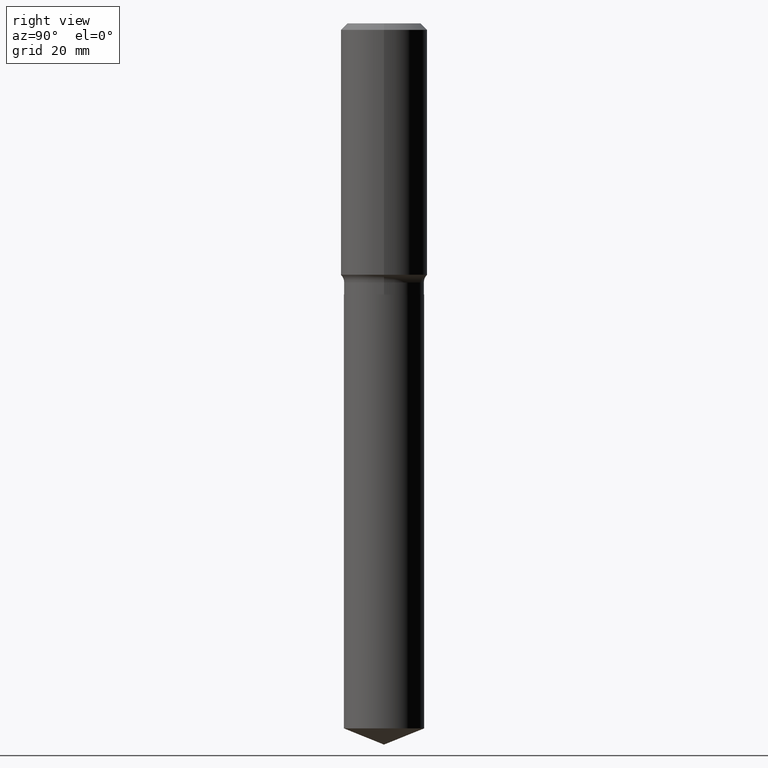
[diagram: clean part render]
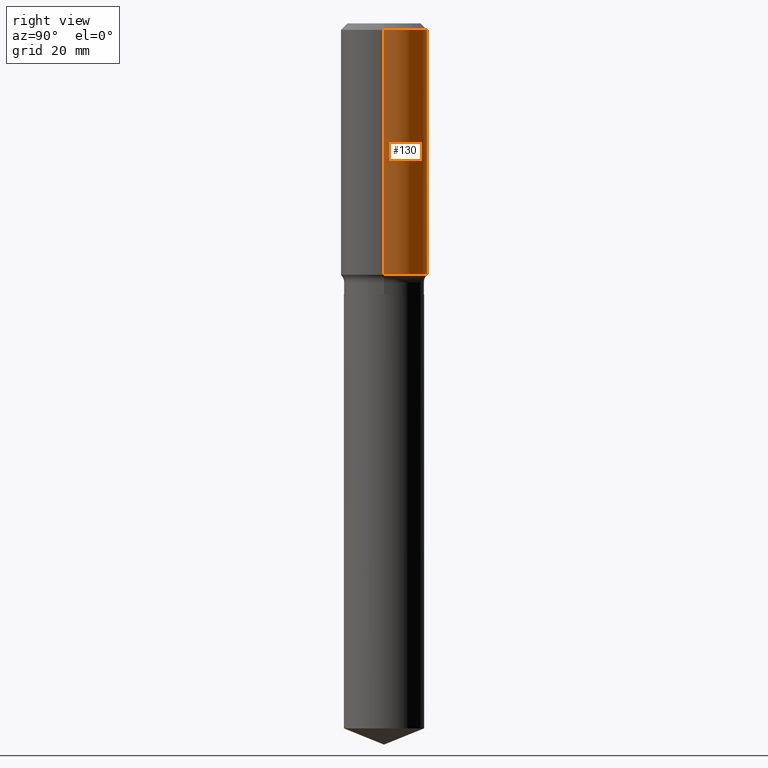
[diagram: same view with one face highlighted and labeled with its STEP entity id]
A machine part, right view. The second image highlights one B-rep face of the part: STEP entity #130.
In plain terms, the highlighted cylindrical surface (partial cylindrical patch) has radius 7.9997 mm, axis along (-0, 0, 1).
Its self-contained STEP definition (entity closure, byte-faithful):
#18 = AXIS2_PLACEMENT_3D ( 'NONE', #274, #438, #236 ) ;
#20 = DIRECTION ( 'NONE',  ( -2.445468806185136877E-29, 3.491481338843145188E-15, 1.000000000000000000 ) ) ;
#26 = CARTESIAN_POINT ( 'NONE',  ( 0.000000000000000000, 0.000000000000000000, 0.000000000000000000 ) ) ;
#33 = CARTESIAN_POINT ( 'NONE',  ( 4.462250649209089674E-29, -6.370911308109631096E-15, -1.824701520593131843 ) ) ;
#51 = EDGE_CURVE ( 'NONE', #275, #142, #349, .T. ) ;
#57 = VERTEX_POINT ( 'NONE', #341 ) ;
#65 = CARTESIAN_POINT ( 'NONE',  ( 0.3149500000000001743, -2.199284095337290660E-15, 1.535751875536930690E-29 ) ) ;
#112 = VECTOR ( 'NONE', #333, 39.37007874015748143 ) ;
#121 = EDGE_CURVE ( 'NONE', #269, #57, #215, .T. ) ;
#130 = ADVANCED_FACE ( 'NONE', ( #291 ), #381, .T. ) ;
#142 = VERTEX_POINT ( 'NONE', #177 ) ;
#144 = ORIENTED_EDGE ( 'NONE', *, *, #51, .F. ) ;
#149 = CARTESIAN_POINT ( 'NONE',  ( -0.3149500000000001743, 2.237854346276436774E-15, -1.549218606675783237E-29 ) ) ;
#153 = ORIENTED_EDGE ( 'NONE', *, *, #385, .T. ) ;
#177 = CARTESIAN_POINT ( 'NONE',  ( 0.3149500000000000077, -2.364230402487588149E-15, -0.04724250000000029120 ) ) ;
#188 = DIRECTION ( 'NONE',  ( 1.000000000000000000, -6.982962677686268288E-15, 0.000000000000000000 ) ) ;
#204 = VECTOR ( 'NONE', #20, 39.37007874015748143 ) ;
#215 = LINE ( 'NONE', #149, #112 ) ;
#236 = DIRECTION ( 'NONE',  ( 1.000000000000000000, -6.982962677686266711E-15, 0.000000000000000000 ) ) ;
#249 = ORIENTED_EDGE ( 'NONE', *, *, #267, .F. ) ;
#262 = DIRECTION ( 'NONE',  ( -2.445468806185136597E-29, 3.491481338843145583E-15, 1.000000000000000000 ) ) ;
#264 = CIRCLE ( 'NONE', #467, 0.3149500000000002298 ) ;
#267 = EDGE_CURVE ( 'NONE', #142, #57, #463, .T. ) ;
#269 = VERTEX_POINT ( 'NONE', #401 ) ;
#274 = CARTESIAN_POINT ( 'NONE',  ( 1.155300600762020273E-30, -1.649463071502983032E-16, -0.04724250000000029120 ) ) ;
#275 = VERTEX_POINT ( 'NONE', #326 ) ;
#291 = FACE_OUTER_BOUND ( 'NONE', #413, .T. ) ;
#293 = DIRECTION ( 'NONE',  ( 1.000000000000000000, -6.982962677686265922E-15, 4.876176775795935232E-29 ) ) ;
#315 = DIRECTION ( 'NONE',  ( -2.445468806185136597E-29, 3.491481338843145583E-15, 1.000000000000000000 ) ) ;
#326 = CARTESIAN_POINT ( 'NONE',  ( 0.3149500000000002853, -8.570195403446922545E-15, -1.824701520593131843 ) ) ;
#333 = DIRECTION ( 'NONE',  ( -2.445468806185136877E-29, 3.491481338843145188E-15, 1.000000000000000000 ) ) ;
#341 = CARTESIAN_POINT ( 'NONE',  ( -0.3149500000000000077, -1.030074461353527914E-15, -0.04724250000000029120 ) ) ;
#349 = LINE ( 'NONE', #65, #204 ) ;
#369 = ORIENTED_EDGE ( 'NONE', *, *, #121, .T. ) ;
#381 = CYLINDRICAL_SURFACE ( 'NONE', #457, 0.3149500000000001743 ) ;
#385 = EDGE_CURVE ( 'NONE', #275, #269, #264, .T. ) ;
#401 = CARTESIAN_POINT ( 'NONE',  ( -0.3149500000000002853, -4.133056961833193534E-15, -1.824701520593131843 ) ) ;
#413 = EDGE_LOOP ( 'NONE', ( #153, #369, #249, #144 ) ) ;
#438 = DIRECTION ( 'NONE',  ( -2.445468806185136597E-29, 3.491481338843145583E-15, 1.000000000000000000 ) ) ;
#457 = AXIS2_PLACEMENT_3D ( 'NONE', #26, #262, #293 ) ;
#463 = CIRCLE ( 'NONE', #18, 0.3149500000000000077 ) ;
#467 = AXIS2_PLACEMENT_3D ( 'NONE', #33, #315, #188 ) ;